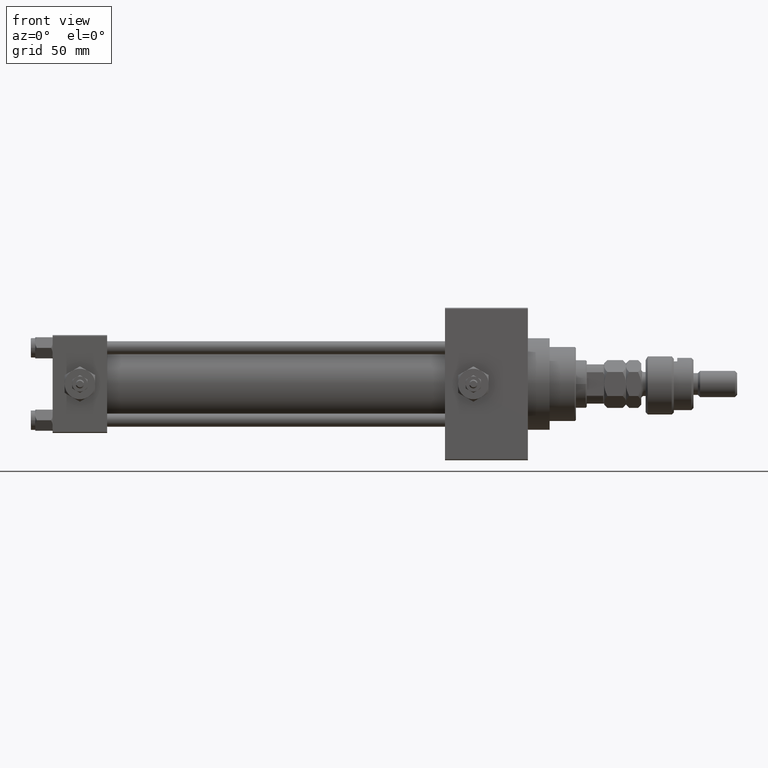
[diagram: clean part render]
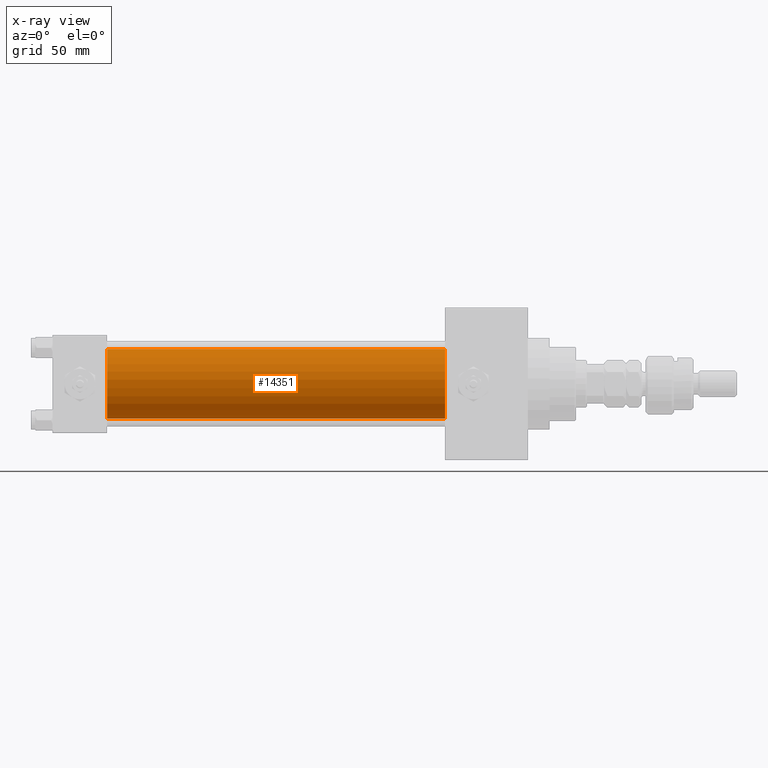
[diagram: x-ray — body ghosted, one internal face saturated and labeled with its STEP entity id]
A machine part, front view, then the same camera in x-ray: the body is ghosted and one INTERNAL B-rep face — a face not visible from any outside direction — is saturated and labeled: STEP entity #14351.
In plain terms, the highlighted cylindrical surface (edge-blend (fillet) strip) has radius 16 mm, axis along (-1, -0, -0).
Its self-contained STEP definition (entity closure, byte-faithful):
#2052 = CARTESIAN_POINT ( 'NONE',  ( 180.0000000000000000, -2.602085213965210642E-15, 16.00000000000000000 ) ) ;
#3746 = ORIENTED_EDGE ( 'NONE', *, *, #23829, .F. ) ;
#4365 = DIRECTION ( 'NONE',  ( 0.000000000000000000, 0.000000000000000000, -1.000000000000000000 ) ) ;
#5649 = AXIS2_PLACEMENT_3D ( 'NONE', #12360, #27582, #44367 ) ;
#10591 = LINE ( 'NONE', #28326, #25484 ) ;
#11065 = EDGE_CURVE ( 'NONE', #21039, #46965, #10591, .T. ) ;
#11727 = DIRECTION ( 'NONE',  ( 1.000000000000000000, 0.000000000000000000, 0.000000000000000000 ) ) ;
#12360 = CARTESIAN_POINT ( 'NONE',  ( 180.0000000000000000, -2.602085213965210642E-15, 0.000000000000000000 ) ) ;
#13264 = CIRCLE ( 'NONE', #27525, 16.00000000000000000 ) ;
#14351 = ADVANCED_FACE ( 'NONE', ( #32717 ), #40587, .F. ) ;
#16210 = DIRECTION ( 'NONE',  ( 0.000000000000000000, 0.000000000000000000, 1.000000000000000000 ) ) ;
#16465 = DIRECTION ( 'NONE',  ( -1.000000000000000000, -0.000000000000000000, -0.000000000000000000 ) ) ;
#17463 = ORIENTED_EDGE ( 'NONE', *, *, #19225, .T. ) ;
#18219 = ORIENTED_EDGE ( 'NONE', *, *, #41067, .F. ) ;
#19225 = EDGE_CURVE ( 'NONE', #50312, #21039, #45067, .T. ) ;
#20395 = EDGE_LOOP ( 'NONE', ( #17463, #21646, #3746, #18219 ) ) ;
#21039 = VERTEX_POINT ( 'NONE', #34450 ) ;
#21239 = LINE ( 'NONE', #2052, #28545 ) ;
#21499 = DIRECTION ( 'NONE',  ( -1.000000000000000000, -0.000000000000000000, -0.000000000000000000 ) ) ;
#21646 = ORIENTED_EDGE ( 'NONE', *, *, #11065, .T. ) ;
#23550 = CARTESIAN_POINT ( 'NONE',  ( 180.0000000000000000, -2.602085213965210642E-15, 0.000000000000000000 ) ) ;
#23829 = EDGE_CURVE ( 'NONE', #49645, #46965, #13264, .T. ) ;
#25484 = VECTOR ( 'NONE', #38935, 1000.000000000000000 ) ;
#25895 = CARTESIAN_POINT ( 'NONE',  ( 25.00000000000000000, -2.602085213965210642E-15, 16.00000000000000000 ) ) ;
#27525 = AXIS2_PLACEMENT_3D ( 'NONE', #27722, #11727, #4365 ) ;
#27582 = DIRECTION ( 'NONE',  ( 1.000000000000000000, 0.000000000000000000, 0.000000000000000000 ) ) ;
#27722 = CARTESIAN_POINT ( 'NONE',  ( 25.00000000000000000, -2.602085213965210642E-15, 0.000000000000000000 ) ) ;
#28326 = CARTESIAN_POINT ( 'NONE',  ( 180.0000000000000000, -6.426503353294456087E-16, -16.00000000000000000 ) ) ;
#28545 = VECTOR ( 'NONE', #21499, 1000.000000000000000 ) ;
#31507 = AXIS2_PLACEMENT_3D ( 'NONE', #23550, #16465, #16210 ) ;
#32717 = FACE_OUTER_BOUND ( 'NONE', #20395, .T. ) ;
#34450 = CARTESIAN_POINT ( 'NONE',  ( 180.0000000000000000, -6.426503353294456087E-16, -16.00000000000000000 ) ) ;
#34959 = CARTESIAN_POINT ( 'NONE',  ( 25.00000000000000000, -6.426503353294456087E-16, -16.00000000000000000 ) ) ;
#38935 = DIRECTION ( 'NONE',  ( -1.000000000000000000, -0.000000000000000000, -0.000000000000000000 ) ) ;
#40587 = CYLINDRICAL_SURFACE ( 'NONE', #31507, 16.00000000000000000 ) ;
#41067 = EDGE_CURVE ( 'NONE', #50312, #49645, #21239, .T. ) ;
#44367 = DIRECTION ( 'NONE',  ( 0.000000000000000000, 0.000000000000000000, -1.000000000000000000 ) ) ;
#45067 = CIRCLE ( 'NONE', #5649, 16.00000000000000000 ) ;
#45068 = CARTESIAN_POINT ( 'NONE',  ( 180.0000000000000000, -2.602085213965210642E-15, 16.00000000000000000 ) ) ;
#46965 = VERTEX_POINT ( 'NONE', #34959 ) ;
#49645 = VERTEX_POINT ( 'NONE', #25895 ) ;
#50312 = VERTEX_POINT ( 'NONE', #45068 ) ;